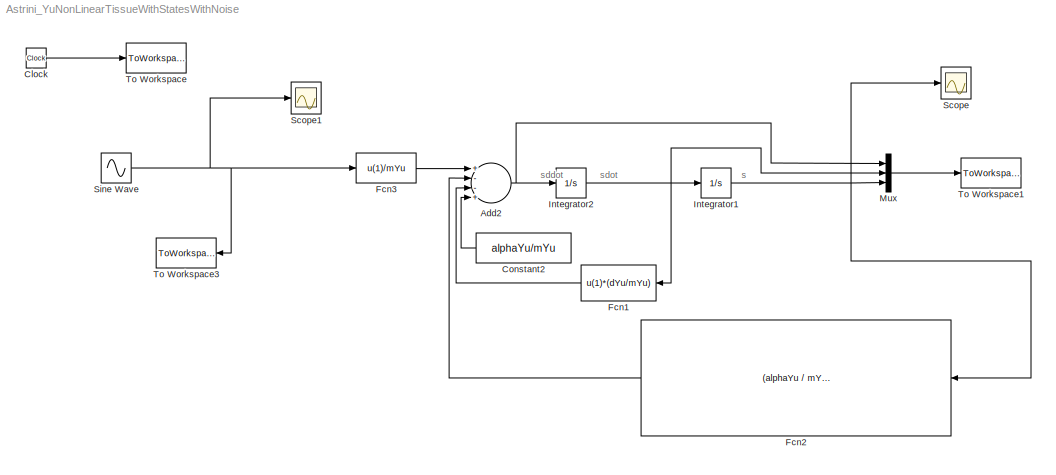
MODEL Astrini_YuNonLinearTissueWithStatesWithNoise
KIND model
BLOCK [Sum] Add2
  InputSameDT = off
  Inputs = +--+
  OutDataTypeStr = Inherit: Inherit via internal rule
  Ports = [4, 1]
  SID = 50
  SaturateOnIntegerOverflow = off
BLOCK [Clock] Clock
  SID = 3
BLOCK [Constant] Constant2
  SID = 51
  Value = alphaYu/mYu
BLOCK [Fcn] Fcn1
  Expr = u(1)*(dYu/mYu)
  SID = 52
BLOCK [Fcn] Fcn2
  Expr = (alphaYu / mYu) * exp( u(1)*betaYu)
  SID = 53
BLOCK [Fcn] Fcn3
  Expr = u(1)/mYu
  SID = 54
BLOCK [Integrator] Integrator1
  Ports = [1, 1]
  SID = 55
BLOCK [Integrator] Integrator2
  Ports = [1, 1]
  SID = 56
BLOCK [Mux] Mux
  DisplayOption = bar
  Inputs = 3
  Ports = [3, 1]
  SID = 62
BLOCK [Scope] Scope
  DataFormat = StructureWithTime
  Floating = off
  NumInputPorts = 1
  Ports = [1]
  SID = 69
  SampleTime = 0
  ShowLegends = off
BLOCK [Scope] Scope1
  DataFormat = StructureWithTime
  Floating = off
  NumInputPorts = 1
  Ports = [1]
  SID = 76
  SampleTime = 0
  SaveName = ScopeData1
  ShowLegends = off
BLOCK [Sin] Sine Wave
  Amplitude = A/2
  Bias = A/2
  Frequency = Fgrasp*(2*pi)
  Phase = -pi/2
  Ports = [0, 1]
  SID = 61
  SampleTime = 0
BLOCK [ToWorkspace] To Workspace
  MaxDataPoints = inf
  Ports = [1]
  SID = 12
  SampleTime = -1
  VariableName = t
BLOCK [ToWorkspace] To Workspace1
  MaxDataPoints = inf
  Ports = [1]
  SID = 18
  SampleTime = -1
  VariableName = state
BLOCK [ToWorkspace] To Workspace3
  MaxDataPoints = inf
  Ports = [1]
  SID = 21
  SampleTime = -1
  VariableName = force
ANNOTATION (root): s
ANNOTATION (root): sddot
ANNOTATION (root): sdot
NET Add2:1 -> Integrator2:1, Mux:1
LINE Clock:1 -> To Workspace:1
LINE Constant2:1 -> Add2:4
LINE Fcn1:1 -> Add2:3
LINE Fcn2:1 -> Add2:2
LINE Fcn3:1 -> Add2:1
NET Integrator1:1 -> Fcn2:1, Mux:3, Scope:1
NET Integrator2:1 -> Fcn1:1, Integrator1:1, Mux:2
LINE Mux:1 -> To Workspace1:1
NET Sine Wave:1 -> Fcn3:1, Scope1:1, To Workspace3:1
note: NET lines group one-source signal fan-out (src -> all destinations, sorted); 1:1 wires keep LINE
